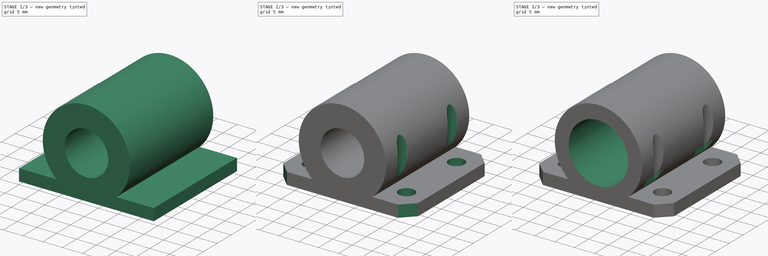
[diagram: build sequence overview — one tinted view per stage of 3, left to right]
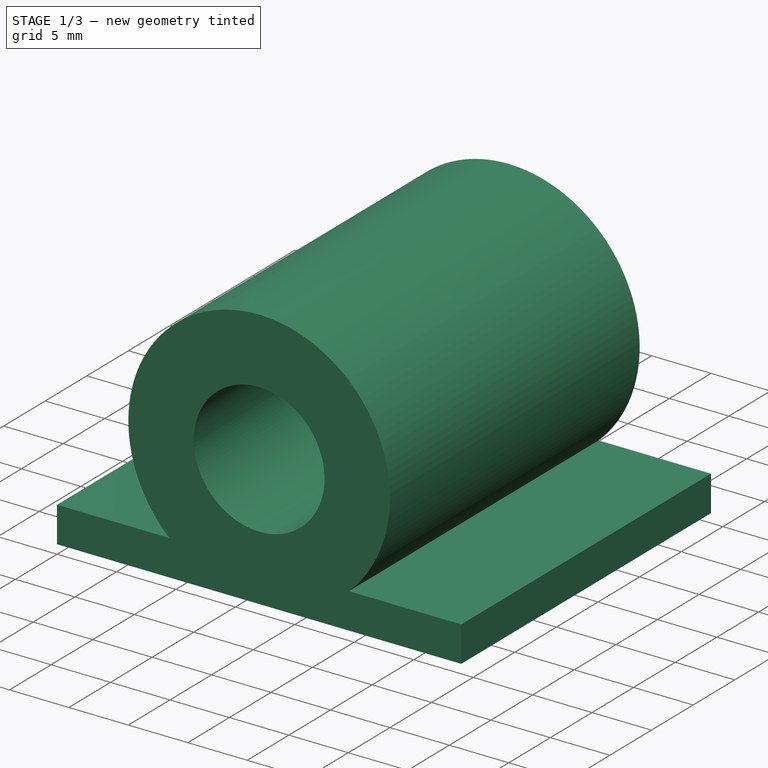
[diagram: stage 1 of 3 — iso view after this stage's code; geometry added in this stage tinted green]
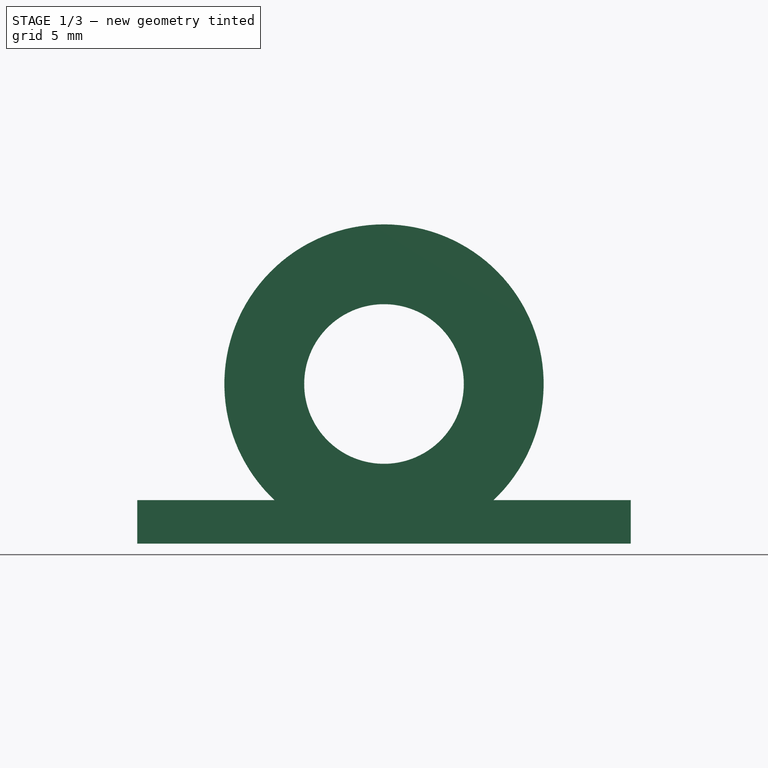
[diagram: stage 1 of 3 — front view after this stage's code; geometry added in this stage tinted green]
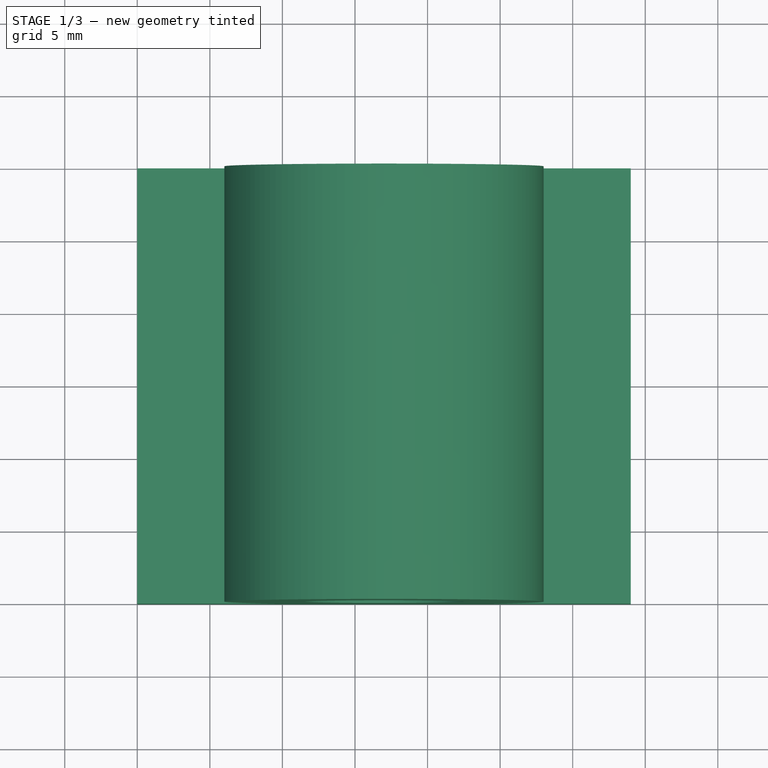
[diagram: stage 1 of 3 — top view after this stage's code; geometry added in this stage tinted green]
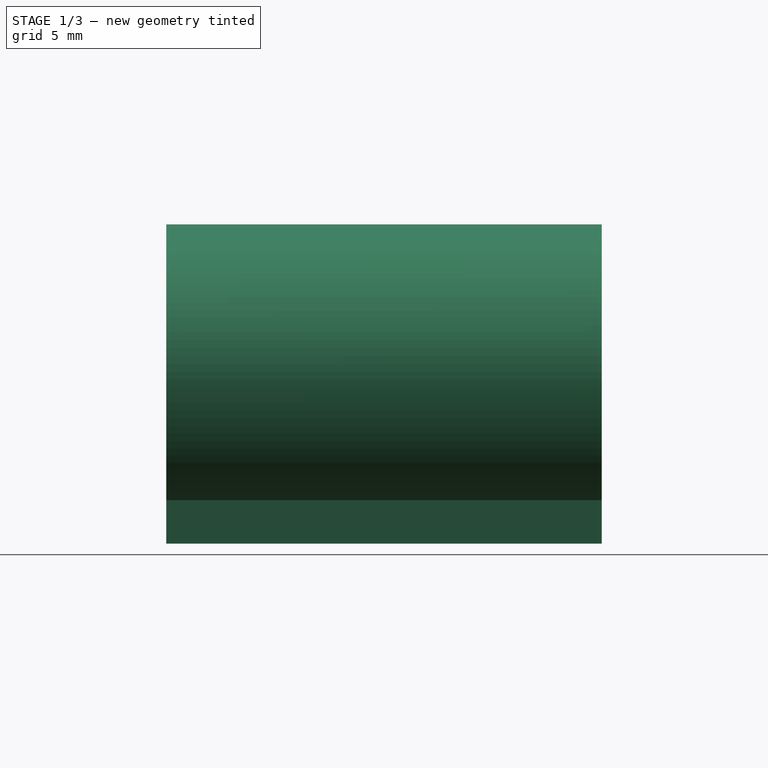
[diagram: stage 1 of 3 — right view after this stage's code; geometry added in this stage tinted green]
FCSTD DOCUMENT  (FreeCAD 0.18R14555 (Git shallow))
Label: bearing-adapter
License: All rights reserved
LicenseURL: http://en.wikipedia.org/wiki/All_rights_reserved
objects: Sketcher::SketchObject×5, PartDesign::Pocket×4, PartDesign::Pad×1, PartDesign::Chamfer×1, PartDesign::Body×1
note: 17 computed .brp shape members not serialized (recipe doc carries the construction recipe); baked Part::Feature solids carry a one-line shape summary decoded from their .brp

FEATURE [Sketcher::SketchObject] Sketch
  MapMode = 5
  Support = -> [XY_Plane]
  sketch-geometry (4):
    g0: LineSegment StartX=0 StartY=0 StartZ=0 EndX=34 EndY=0 EndZ=0
    g1: LineSegment StartX=34 StartY=0 StartZ=0 EndX=34 EndY=30 EndZ=0
    g2: LineSegment StartX=34 StartY=30 StartZ=0 EndX=0 EndY=30 EndZ=0
    g3: LineSegment StartX=0 StartY=30 StartZ=0 EndX=0 EndY=0 EndZ=0
  constraints (11):
    c: Coincident(g0,g1)
    c: Coincident(g1,g2)
    c: Coincident(g2,g3)
    c: Coincident(g3,g0)
    c: Horizontal(g0)
    c: Horizontal(g2)
    c: Vertical(g1)
    c: Vertical(g3)
    c: DistanceY(g3,g3) = 30
    c: DistanceX(g0,g0) = 34
    c: Coincident(g0,g-1)
FEATURE [PartDesign::Pad] Pad
  Length = 22
  Length2 = 100
  Profile = -> Sketch
  Type = 0
FEATURE [Sketcher::SketchObject] Sketch001
  ExternalGeometry = -> [Pad]
  MapMode = 5
  Placement = pos=(0,0,0) rot=(1,0,0;1.5708rad)
  Support = -> [Pad]
  sketch-geometry (12):
    g0: Circle CenterX=17 CenterY=11 CenterZ=0 NormalX=0 NormalY=0 NormalZ=1 AngleXU=0 Radius=5.5
    g1: LineSegment [constr] StartX=17 StartY=11 StartZ=0 EndX=0 EndY=22 EndZ=0
    g2: LineSegment [constr] StartX=17 StartY=11 StartZ=0 EndX=34 EndY=22 EndZ=0
    g3: ArcOfCircle CenterX=17 CenterY=11 CenterZ=0 NormalX=0 NormalY=0 NormalZ=1 AngleXU=0 Radius=11 StartAngle=1.5708 EndAngle=3.95593
    g4: ArcOfCircle CenterX=17 CenterY=11 CenterZ=0 NormalX=0 NormalY=0 NormalZ=1 AngleXU=0 Radius=11 StartAngle=5.46885 EndAngle=7.85398
    g5: LineSegment StartX=17 StartY=22 StartZ=0 EndX=0 EndY=22 EndZ=0
    g6: LineSegment StartX=0 StartY=22 StartZ=0 EndX=0 EndY=3 EndZ=0
    g7: LineSegment StartX=0 StartY=3 StartZ=0 EndX=9.45017 EndY=3 EndZ=0
    g8: LineSegment StartX=17 StartY=22 StartZ=0 EndX=34 EndY=22 EndZ=0
    g9: LineSegment StartX=34 StartY=22 StartZ=0 EndX=34 EndY=3 EndZ=0
    g10: LineSegment StartX=34 StartY=3 StartZ=0 EndX=24.5498 EndY=3 EndZ=0
    g11: LineSegment [constr] StartX=9.45017 StartY=3 StartZ=0 EndX=24.5498 EndY=3 EndZ=0
  constraints (30):
    c: Coincident(g1,g0)
    c: Coincident(g1,g-3)
    c: Coincident(g2,g0)
    c: Coincident(g2,g-3)
    c: Equal(g1,g2)
    c: Radius(g0) = 5.5
    c: DistanceY(g0,g1) = 11
    c: Coincident(g3,g0)
    c: Coincident(g4,g0)
    c: Coincident(g4,g3)
    c: Coincident(g3,g5)
    c: Coincident(g5,g6)
    c: Vertical(g6)
    c: Coincident(g6,g7)
    c: Coincident(g7,g3)
    c: Horizontal(g7)
    c: Coincident(g8,g9)
    c: Vertical(g9)
    c: Coincident(g9,g10)
    c: Coincident(g10,g4)
    c: Horizontal(g10)
    c: Coincident(g8,g3)
    c: Horizontal(g8)
    c: Tangent(g3,g-3) = 1.5708
    c: Coincident(g11,g3)
    c: Coincident(g11,g4)
    c: Horizontal(g11)
    c: Equal(g7,g10)
    c: Coincident(g5,g1)
    c: DistanceY(g-1,g6) = 3
FEATURE [PartDesign::Pocket] Pocket
  BaseFeature = -> Pad
  Length = 5
  Length2 = 100
  Profile = -> Sketch001
  Type = 1
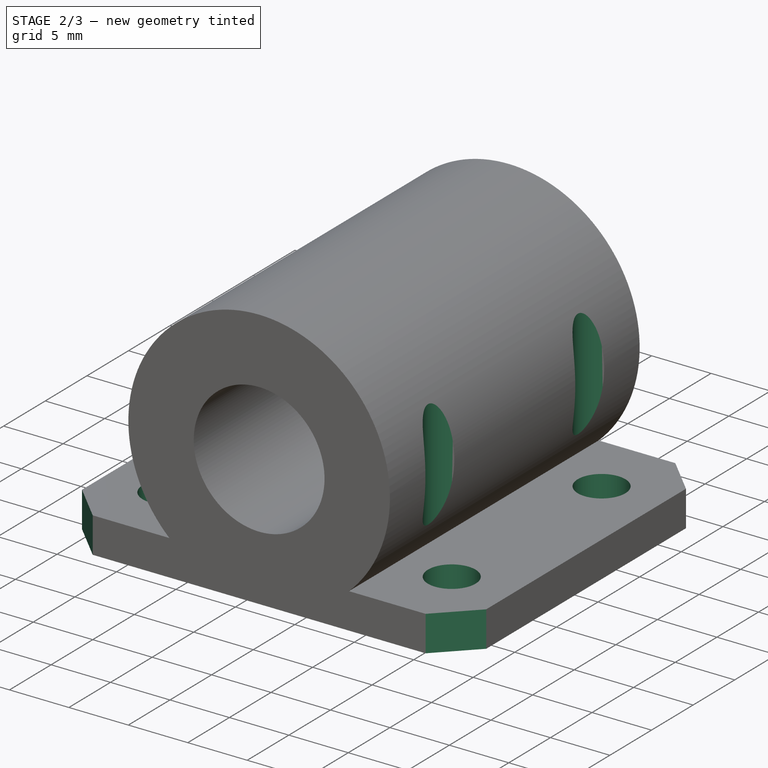
[diagram: stage 2 of 3 — iso view after this stage's code; geometry added in this stage tinted green]
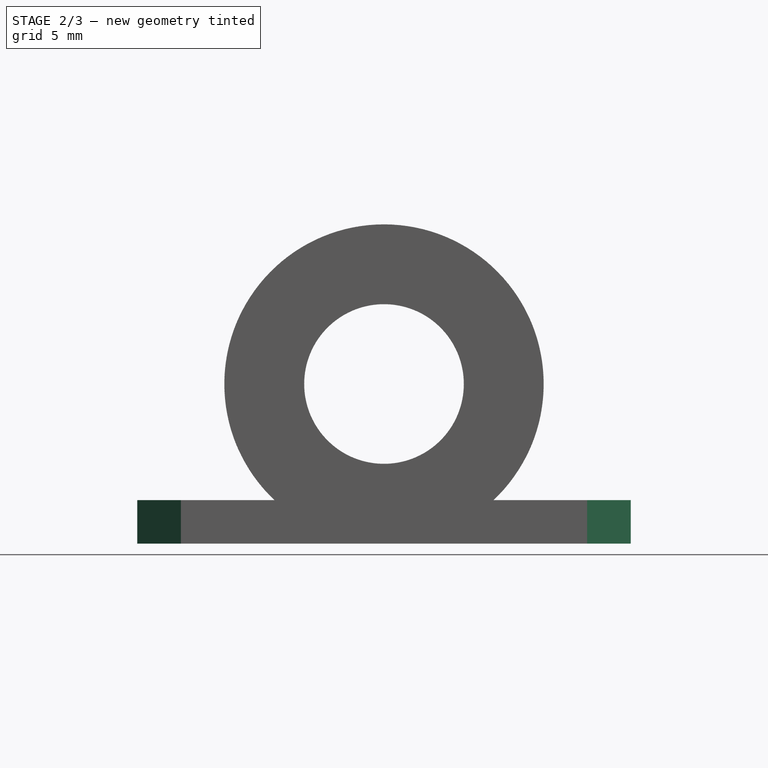
[diagram: stage 2 of 3 — front view after this stage's code; geometry added in this stage tinted green]
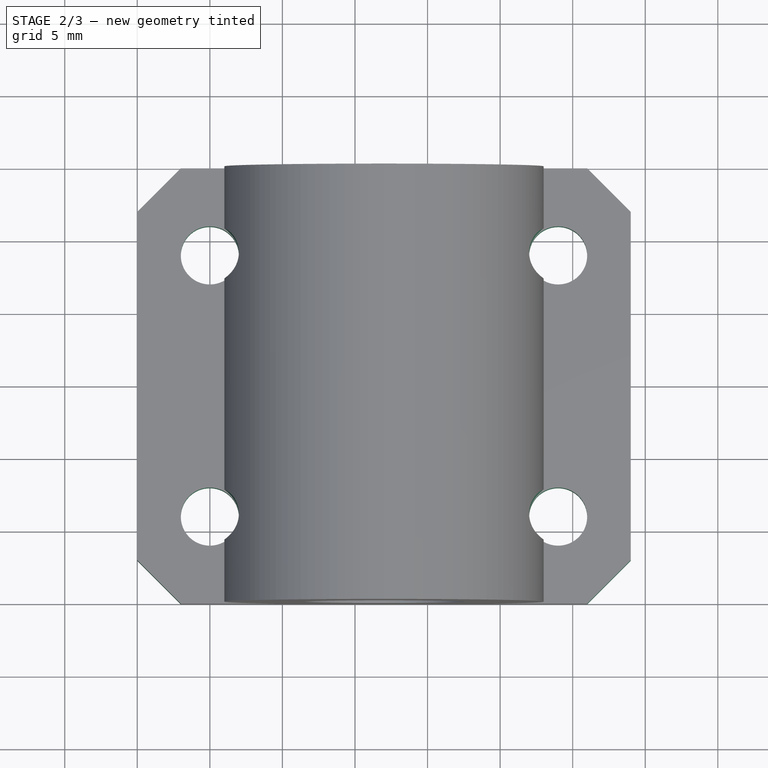
[diagram: stage 2 of 3 — top view after this stage's code; geometry added in this stage tinted green]
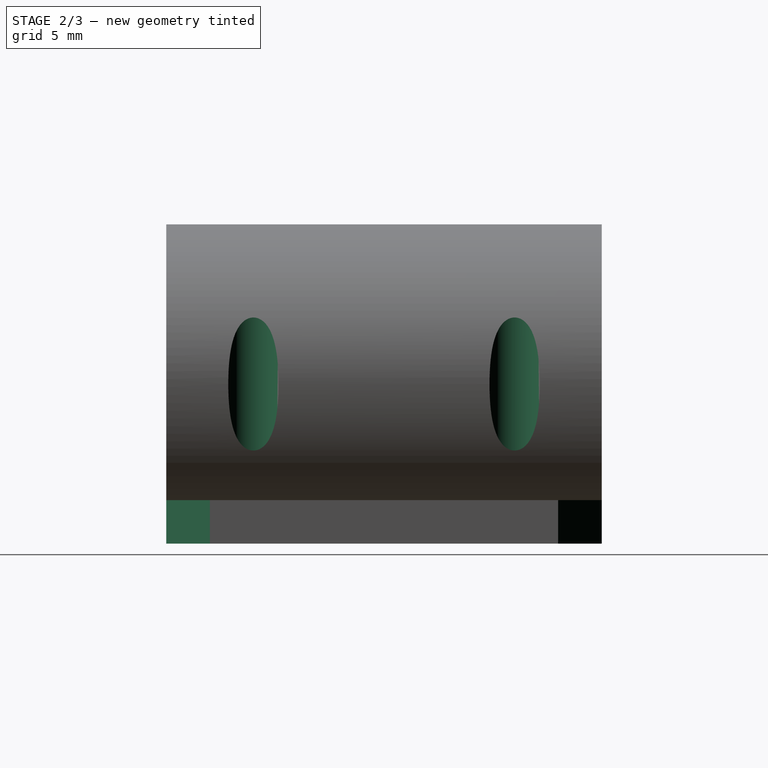
[diagram: stage 2 of 3 — right view after this stage's code; geometry added in this stage tinted green]
FEATURE [Sketcher::SketchObject] Sketch002
  ExternalGeometry = -> [Pocket]
  MapMode = 5
  Placement = pos=(0,0,0) rot=(1,0,0;3.14159rad)
  Support = -> [Pocket]
  sketch-geometry (11):
    g0: LineSegment [constr] StartX=5 StartY=-6 StartZ=0 EndX=29 EndY=-6 EndZ=0
    g1: LineSegment [constr] StartX=29 StartY=-6 StartZ=0 EndX=29 EndY=-24 EndZ=0
    g2: LineSegment [constr] StartX=29 StartY=-24 StartZ=0 EndX=5 EndY=-24 EndZ=0
    g3: LineSegment [constr] StartX=5 StartY=-24 StartZ=0 EndX=5 EndY=-6 EndZ=0
    g4: Circle CenterX=5 CenterY=-6 CenterZ=0 NormalX=0 NormalY=0 NormalZ=1 AngleXU=0 Radius=2
    g5: Circle CenterX=29 CenterY=-6 CenterZ=0 NormalX=0 NormalY=0 NormalZ=1 AngleXU=0 Radius=2
    g6: Circle CenterX=29 CenterY=-24 CenterZ=0 NormalX=0 NormalY=0 NormalZ=1 AngleXU=0 Radius=2
    g7: Circle CenterX=5 CenterY=-24 CenterZ=0 NormalX=0 NormalY=0 NormalZ=1 AngleXU=0 Radius=2
    g8: LineSegment [constr] StartX=0 StartY=-30 StartZ=0 EndX=5 EndY=-24 EndZ=0
    g9: LineSegment [constr] StartX=5 StartY=-6 StartZ=0 EndX=0 EndY=0 EndZ=0
    g10: LineSegment [constr] StartX=29 StartY=-6 StartZ=0 EndX=34 EndY=0 EndZ=0
  constraints (26):
    c: Coincident(g0,g1)
    c: Coincident(g1,g2)
    c: Coincident(g2,g3)
    c: Coincident(g3,g0)
    c: Horizontal(g0)
    c: Horizontal(g2)
    c: Vertical(g1)
    c: Vertical(g3)
    c: Coincident(g4,g0)
    c: Coincident(g5,g0)
    c: Coincident(g6,g1)
    c: Coincident(g7,g2)
    c: Equal(g7,g6)
    c: Equal(g6,g5)
    c: Equal(g5,g4)
    c: Radius(g4) = 2
    c: DistanceX(g0,g0) = 24
    c: DistanceY(g3,g3) = 18
    c: Coincident(g8,g-4)
    c: Coincident(g8,g7)
    c: Coincident(g9,g4)
    c: Coincident(g9,g-1)
    c: Coincident(g10,g5)
    c: Coincident(g10,g-3)
    c: Equal(g10,g9)
    c: Equal(g9,g8)
FEATURE [PartDesign::Pocket] Pocket001
  BaseFeature = -> Pocket
  Length = 3
  Length2 = 100
  Profile = -> Sketch002
  Type = 1
FEATURE [PartDesign::Chamfer] Chamfer
  Base = -> Pocket001 [Edge2,Edge16,Edge38,Edge7]
  BaseFeature = -> Pocket001
  Size = 3
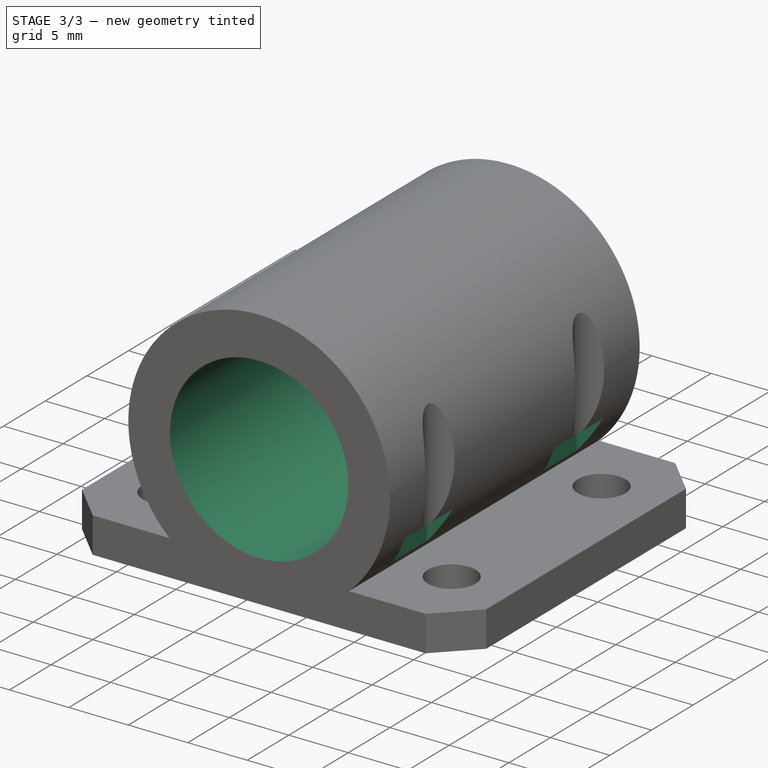
[diagram: stage 3 of 3 — iso view after this stage's code; geometry added in this stage tinted green]
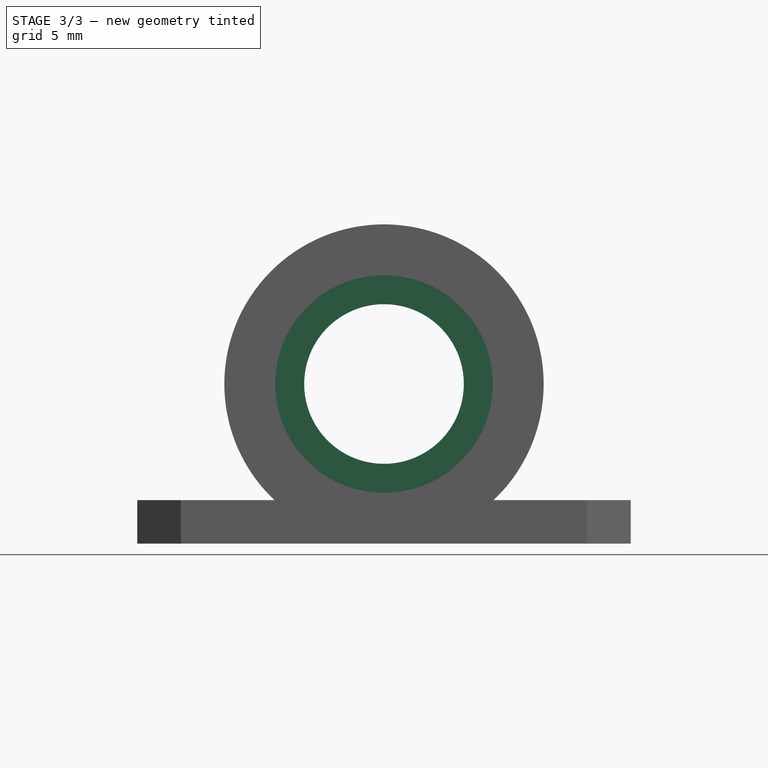
[diagram: stage 3 of 3 — front view after this stage's code; geometry added in this stage tinted green]
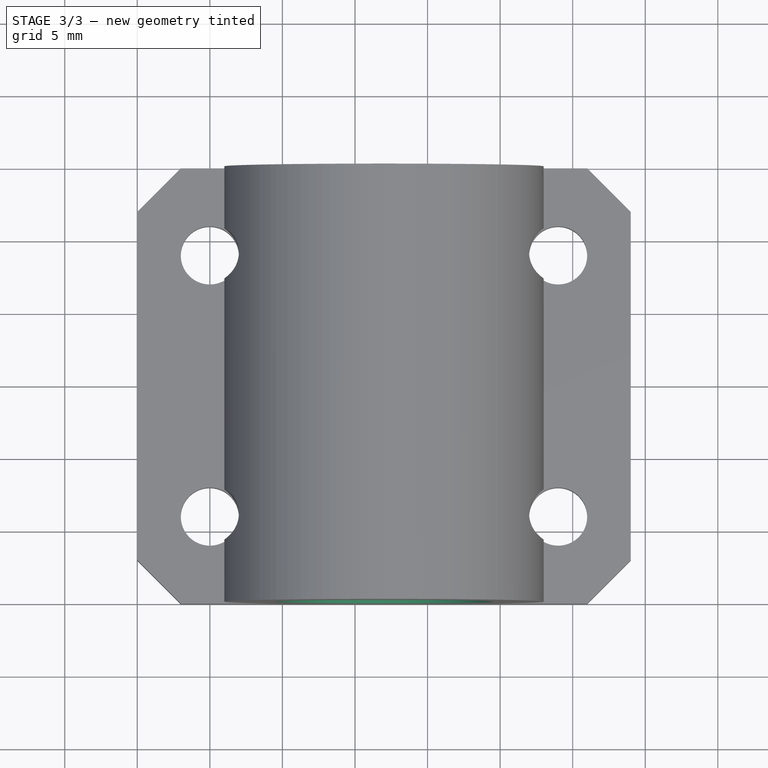
[diagram: stage 3 of 3 — top view after this stage's code; geometry added in this stage tinted green]
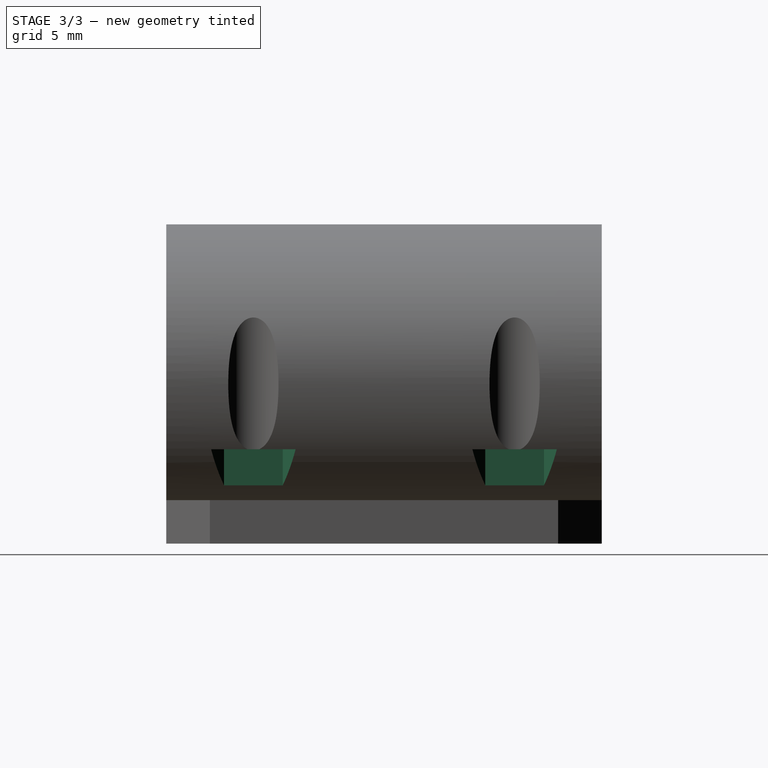
[diagram: stage 3 of 3 — right view after this stage's code; geometry added in this stage tinted green]
FEATURE [Sketcher::SketchObject] Sketch003
  ExternalGeometry = -> [Chamfer]
  MapMode = 5
  Placement = pos=(0,0,0) rot=(1,0,0;1.5708rad)
  Support = -> [Chamfer]
  sketch-geometry (1):
    g0: Circle CenterX=17 CenterY=11 CenterZ=0 NormalX=0 NormalY=0 NormalZ=1 AngleXU=0 Radius=7.5
  constraints (2):
    c: Coincident(g0,g-3)
    c: Radius(g0) = 7.5
FEATURE [PartDesign::Pocket] Pocket002
  BaseFeature = -> Chamfer
  Length = 24
  Length2 = 100
  Profile = -> Sketch003
  Type = 0
FEATURE [Sketcher::SketchObject] Sketch004
  ExternalGeometry = -> [Pocket002]
  MapMode = 5
  Placement = pos=(0,7e-16,3) rot=(0,0,1;0rad)
  Support = -> [Pocket002]
  sketch-geometry (28):
    g0: LineSegment StartX=5 StartY=28.0415 StartZ=0 EndX=1.5 EndY=26.0207 EndZ=0
    g1: LineSegment StartX=1.5 StartY=26.0207 StartZ=0 EndX=1.5 EndY=21.9793 EndZ=0
    g2: LineSegment StartX=1.5 StartY=21.9793 StartZ=0 EndX=5 EndY=19.9585 EndZ=0
    g3: LineSegment StartX=5 StartY=19.9585 StartZ=0 EndX=8.5 EndY=21.9793 EndZ=0
    g4: LineSegment StartX=8.5 StartY=21.9793 StartZ=0 EndX=8.5 EndY=26.0207 EndZ=0
    g5: LineSegment StartX=8.5 StartY=26.0207 StartZ=0 EndX=5 EndY=28.0415 EndZ=0
    g6: Circle [constr] CenterX=5 CenterY=24 CenterZ=0 NormalX=0 NormalY=0 NormalZ=1 AngleXU=0 Radius=4.04145
    g7: LineSegment StartX=32.5 StartY=26.0207 StartZ=0 EndX=29 EndY=28.0415 EndZ=0
    g8: LineSegment StartX=29 StartY=28.0415 StartZ=0 EndX=25.5 EndY=26.0207 EndZ=0
    g9: LineSegment StartX=25.5 StartY=26.0207 StartZ=0 EndX=25.5 EndY=21.9793 EndZ=0
    g10: LineSegment StartX=25.5 StartY=21.9793 StartZ=0 EndX=29 EndY=19.9585 EndZ=0
    g11: LineSegment StartX=29 StartY=19.9585 StartZ=0 EndX=32.5 EndY=21.9793 EndZ=0
    g12: LineSegment StartX=32.5 StartY=21.9793 StartZ=0 EndX=32.5 EndY=26.0207 EndZ=0
    g13: Circle [constr] CenterX=29 CenterY=24 CenterZ=0 NormalX=0 NormalY=0 NormalZ=1 AngleXU=0 Radius=4.04145
    g14: LineSegment StartX=32.5 StartY=8.02073 StartZ=0 EndX=29 EndY=10.0415 EndZ=0
    g15: LineSegment StartX=29 StartY=10.0415 StartZ=0 EndX=25.5 EndY=8.02073 EndZ=0
    g16: LineSegment StartX=25.5 StartY=8.02073 StartZ=0 EndX=25.5 EndY=3.97927 EndZ=0
    g17: LineSegment StartX=25.5 StartY=3.97927 StartZ=0 EndX=29 EndY=1.95855 EndZ=0
    g18: LineSegment StartX=29 StartY=1.95855 StartZ=0 EndX=32.5 EndY=3.97927 EndZ=0
    g19: LineSegment StartX=32.5 StartY=3.97927 StartZ=0 EndX=32.5 EndY=8.02073 EndZ=0
    g20: Circle [constr] CenterX=29 CenterY=6 CenterZ=0 NormalX=0 NormalY=0 NormalZ=1 AngleXU=0 Radius=4.04145
    g21: LineSegment StartX=5 StartY=10.0415 StartZ=0 EndX=1.5 EndY=8.02073 EndZ=0
    g22: LineSegment StartX=1.5 StartY=8.02073 StartZ=0 EndX=1.5 EndY=3.97927 EndZ=0
    g23: LineSegment StartX=1.5 StartY=3.97927 StartZ=0 EndX=5 EndY=1.95855 EndZ=0
    g24: LineSegment StartX=5 StartY=1.95855 StartZ=0 EndX=8.5 EndY=3.97927 EndZ=0
    g25: LineSegment StartX=8.5 StartY=3.97927 StartZ=0 EndX=8.5 EndY=8.02073 EndZ=0
    g26: LineSegment StartX=8.5 StartY=8.02073 StartZ=0 EndX=5 EndY=10.0415 EndZ=0
    g27: Circle [constr] CenterX=5 CenterY=6 CenterZ=0 NormalX=0 NormalY=0 NormalZ=1 AngleXU=0 Radius=4.04145
  constraints (64):
    c: Coincident(g0,g1)
    c: Coincident(g1,g2)
    c: Coincident(g2,g3)
    c: Coincident(g3,g4)
    c: Coincident(g4,g5)
    c: Coincident(g5,g0)
    c: Equal(g0, g1-g5) x5
    c: PointOnObject(g0,g6)
    c: PointOnObject(g1,g6)
    c: PointOnObject(g2,g6)
    c: PointOnObject(g3,g6)
    c: PointOnObject(g4,g6)
    c: PointOnObject(g5,g6)
    c: Coincident(g6,g-3)
    c: Vertical(g1)
    c: DistanceX(g0,g4) = 7
    c: Coincident(g7,g8)
    c: Coincident(g8,g9)
    c: Coincident(g9,g10)
    c: Coincident(g10,g11)
    c: Coincident(g11,g12)
    c: Coincident(g12,g7)
    c: Equal(g7, g8-g12) x5
    c: PointOnObject(g7,g13)
    c: PointOnObject(g8,g13)
    c: PointOnObject(g9,g13)
    c: PointOnObject(g10,g13)
    c: PointOnObject(g11,g13)
    c: PointOnObject(g12,g13)
    c: Coincident(g13,g-4)
    c: Vertical(g12)
    c: Coincident(g14,g15)
    c: Coincident(g15,g16)
    c: Coincident(g16,g17)
    c: Coincident(g17,g18)
    c: Coincident(g18,g19)
    c: Coincident(g19,g14)
    c: Equal(g14, g15-g19) x5
    c: PointOnObject(g14,g20)
    c: PointOnObject(g15,g20)
    c: PointOnObject(g16,g20)
    c: PointOnObject(g17,g20)
    c: PointOnObject(g18,g20)
    c: PointOnObject(g19,g20)
    c: Coincident(g20,g-5)
    c: Vertical(g19)
    c: Coincident(g21,g22)
    c: Coincident(g22,g23)
    c: Coincident(g23,g24)
    c: Coincident(g24,g25)
    c: Coincident(g25,g26)
    c: Coincident(g26,g21)
    c: Equal(g21, g22-g26) x5
    c: PointOnObject(g21,g27)
    c: PointOnObject(g22,g27)
    c: PointOnObject(g23,g27)
    c: PointOnObject(g24,g27)
    c: PointOnObject(g25,g27)
    c: PointOnObject(g26,g27)
    c: Coincident(g27,g-6)
    c: Vertical(g22)
    c: Equal(g27,g20)
    c: Equal(g20,g13)
    c: Equal(g13,g6)
FEATURE [PartDesign::Pocket] Pocket003
  BaseFeature = -> Pocket002
  Length = 3.5
  Length2 = 100
  Profile = -> Sketch004
  Reversed = true
  Type = 0
FEATURE [PartDesign::Body] Body
  Group = -> [Sketch,Pad,Sketch001,Pocket,Sketch002,Pocket001,Chamfer,Sketch003,Pocket002,Sketch004,Pocket003]
  Origin = -> Origin
  Tip = -> Pocket003
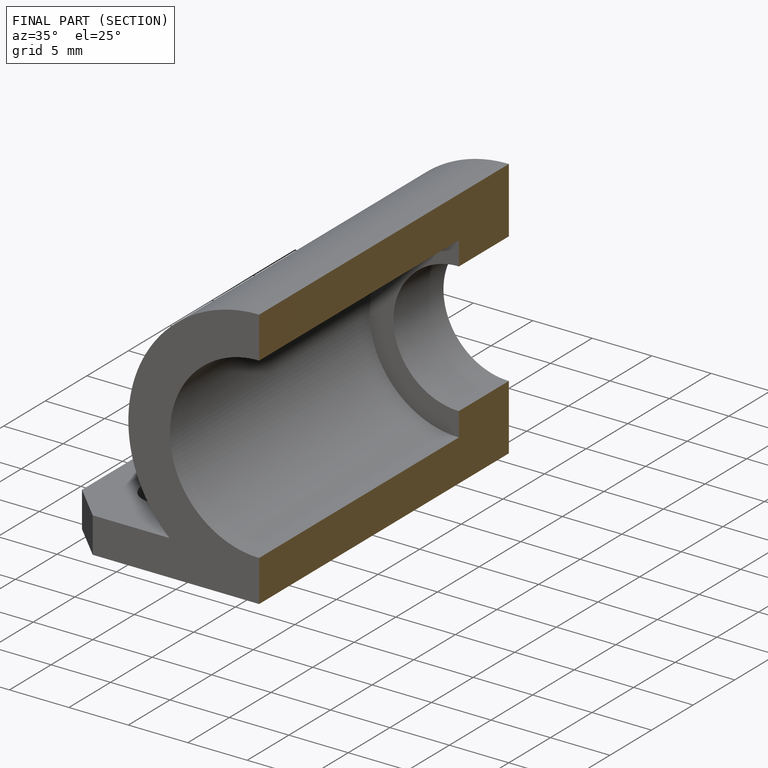
[diagram: finished part — half-section view (interior)]
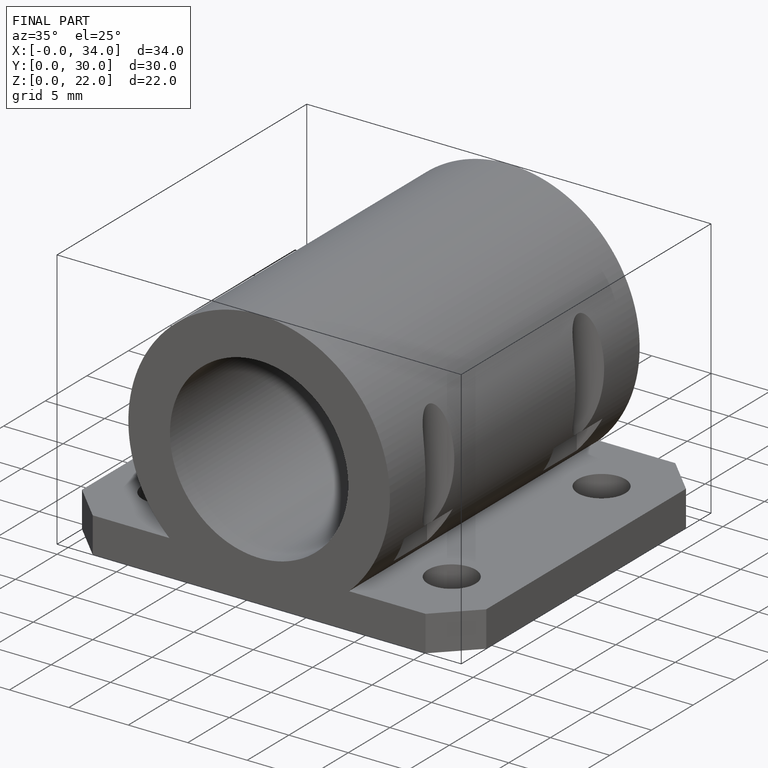
[diagram: finished part — iso view with bounding-box wireframe]
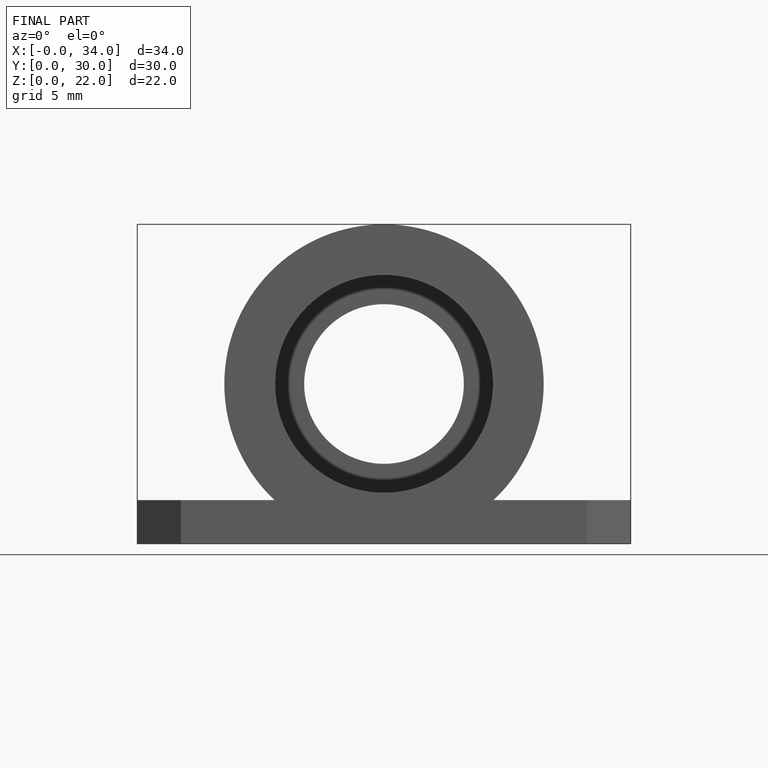
[diagram: finished part — front view with bounding-box wireframe]
